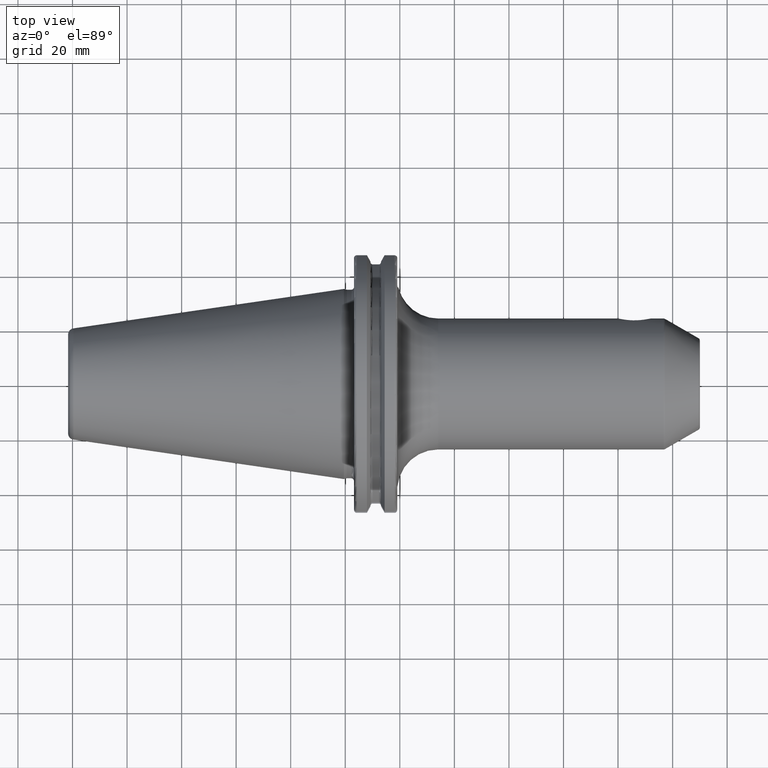
[diagram: clean part render]
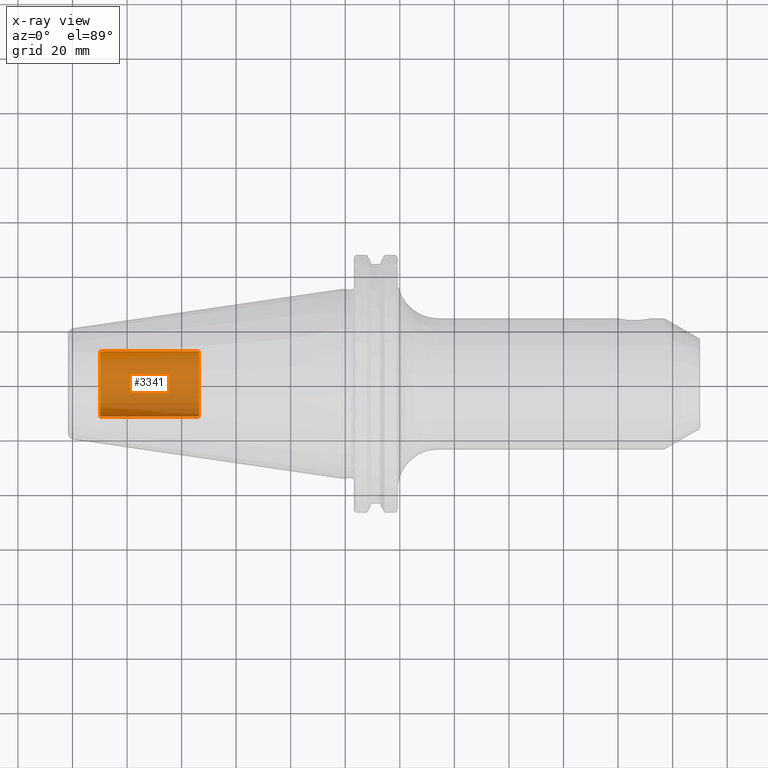
[diagram: x-ray — body ghosted, one internal face saturated and labeled with its STEP entity id]
A machine part, top view, then the same camera in x-ray: the body is ghosted and one INTERNAL B-rep face — a face not visible from any outside direction — is saturated and labeled: STEP entity #3341.
In plain terms, the highlighted cylindrical surface (edge-blend (fillet) strip) has radius 12.0032 mm, axis along (1, 0, 0).
Its self-contained STEP definition (entity closure, byte-faithful):
#3276=CARTESIAN_POINT('',(-8.985E1,0.E0,0.E0));
#3277=DIRECTION('',(-1.E0,0.E0,0.E0));
#3278=DIRECTION('',(0.E0,1.E0,0.E0));
#3279=AXIS2_PLACEMENT_3D('',#3276,#3277,#3278);
#3281=DIRECTION('',(1.E0,0.E0,0.E0));
#3282=VECTOR('',#3281,3.625E1);
#3283=CARTESIAN_POINT('',(-8.985E1,-1.200325E1,0.E0));
#3284=LINE('',#3283,#3282);
#3290=DIRECTION('',(1.E0,0.E0,0.E0));
#3291=VECTOR('',#3290,3.625E1);
#3292=CARTESIAN_POINT('',(-8.985E1,1.200325E1,0.E0));
#3293=LINE('',#3292,#3291);
#3299=CARTESIAN_POINT('',(-5.36E1,0.E0,0.E0));
#3300=DIRECTION('',(1.E0,0.E0,0.E0));
#3301=DIRECTION('',(0.E0,-1.E0,0.E0));
#3302=AXIS2_PLACEMENT_3D('',#3299,#3300,#3301);
#3314=CARTESIAN_POINT('',(-8.985E1,1.200325E1,0.E0));
#3315=CARTESIAN_POINT('',(-8.985E1,-1.200325E1,0.E0));
#3316=VERTEX_POINT('',#3314);
#3317=VERTEX_POINT('',#3315);
#3318=CARTESIAN_POINT('',(-5.36E1,1.200325E1,0.E0));
#3319=CARTESIAN_POINT('',(-5.36E1,-1.200325E1,0.E0));
#3320=VERTEX_POINT('',#3318);
#3321=VERTEX_POINT('',#3319);
#3326=CARTESIAN_POINT('',(-8.985E1,0.E0,0.E0));
#3327=DIRECTION('',(1.E0,0.E0,0.E0));
#3328=DIRECTION('',(0.E0,1.E0,0.E0));
#3329=AXIS2_PLACEMENT_3D('',#3326,#3327,#3328);
#3330=CYLINDRICAL_SURFACE('',#3329,1.200325E1);
#3332=ORIENTED_EDGE('',*,*,#3331,.T.);
#3334=ORIENTED_EDGE('',*,*,#3333,.T.);
#3336=ORIENTED_EDGE('',*,*,#3335,.T.);
#3338=ORIENTED_EDGE('',*,*,#3337,.F.);
#3339=EDGE_LOOP('',(#3332,#3334,#3336,#3338));
#3340=FACE_OUTER_BOUND('',#3339,.F.);
#3341=ADVANCED_FACE('',(#3340),#3330,.T.);
#3280=CIRCLE('',#3279,1.200325E1);
#3303=CIRCLE('',#3302,1.200325E1);
#3331=EDGE_CURVE('',#3316,#3317,#3280,.T.);
#3333=EDGE_CURVE('',#3317,#3321,#3284,.T.);
#3335=EDGE_CURVE('',#3321,#3320,#3303,.T.);
#3337=EDGE_CURVE('',#3316,#3320,#3293,.T.);